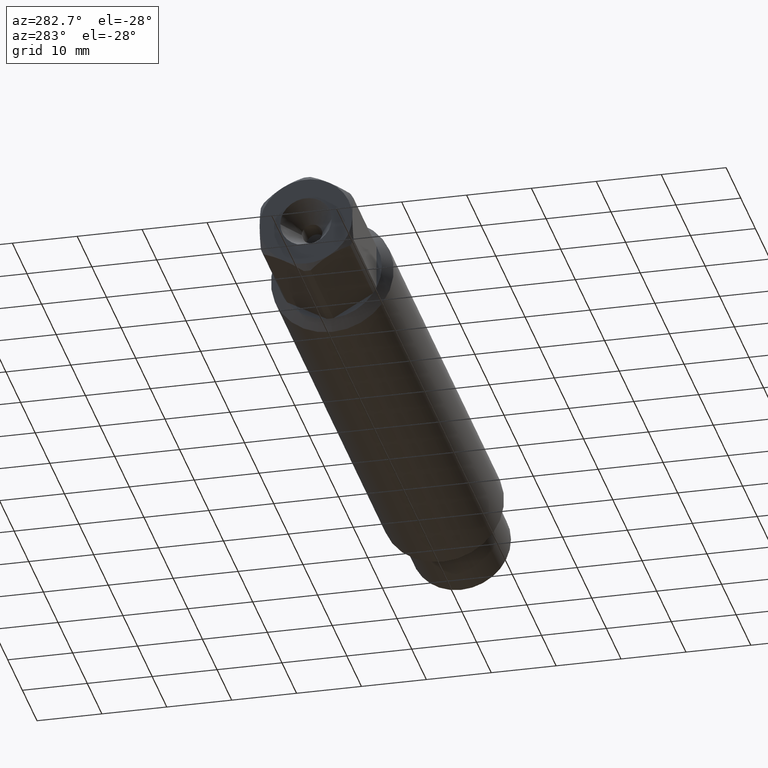
[diagram: clean part render]
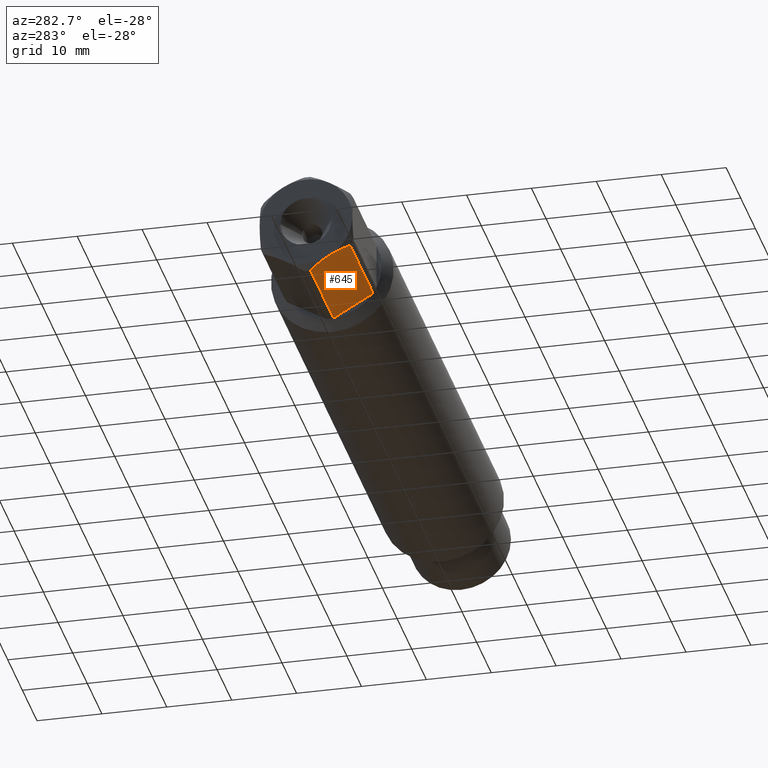
[diagram: same view with one face highlighted and labeled with its STEP entity id]
A machine part, auxiliary view. The second image highlights one B-rep face of the part: STEP entity #645.
In plain terms, the highlighted planar face has unit normal (0, -0.5, -0.866).
Its self-contained STEP definition (entity closure, byte-faithful):
#17 = LINE ( 'NONE', #211, #1021 ) ;
#42 = CARTESIAN_POINT ( 'NONE',  ( -4.196200931399096700, -0.1820648766040727800, -0.2196443209018271400 ) ) ;
#61 = ORIENTED_EDGE ( 'NONE', *, *, #1157, .F. ) ;
#134 = VECTOR ( 'NONE', #358, 39.37007874015748900 ) ;
#135 = CARTESIAN_POINT ( 'NONE',  ( -4.200000000000000200, -0.1510160157302986000, -0.2375703890853319300 ) ) ;
#150 = LINE ( 'NONE', #1057, #134 ) ;
#168 = DIRECTION ( 'NONE',  ( -1.000000000000000000, -0.0000000000000000000, -0.0000000000000000000 ) ) ;
#171 = CARTESIAN_POINT ( 'NONE',  ( -4.196902816074408600, -0.09951115254440355600, -0.2673067357102832400 ) ) ;
#211 = CARTESIAN_POINT ( 'NONE',  ( 0.0000000000000000000, -0.02068536674643359600, -0.3128168243598249400 ) ) ;
#247 = CARTESIAN_POINT ( 'NONE',  ( -4.200000000000000200, -0.1406249999999999700, -0.2435696448143735700 ) ) ;
#270 = CARTESIAN_POINT ( 'NONE',  ( -4.167750000000000700, -0.2605646332535661000, -0.1743224652689220900 ) ) ;
#274 = CARTESIAN_POINT ( 'NONE',  ( -4.177479962077509200, -0.03975960660705944000, -0.3018043068417051200 ) ) ;
#358 = DIRECTION ( 'NONE',  ( 0.0000000000000000000, 0.8660254037844388200, -0.4999999999999995600 ) ) ;
#400 = VERTEX_POINT ( 'NONE', #270 ) ;
#401 = CARTESIAN_POINT ( 'NONE',  ( -4.200000000000000200, -0.2812500000000000600, -0.1623797632095823300 ) ) ;
#410 = CARTESIAN_POINT ( 'NONE',  ( -4.167750000000000700, -0.2605646332535661000, -0.1743224652689220900 ) ) ;
#417 = EDGE_CURVE ( 'NONE', #1005, #400, #766, .T. ) ;
#440 = DIRECTION ( 'NONE',  ( 0.0000000000000000000, -0.4999999999999996100, -0.8660254037844389300 ) ) ;
#473 = B_SPLINE_CURVE_WITH_KNOTS ( 'NONE', 3,
 ( #1252, #757, #171, #858, #274, #952 ),
 .UNSPECIFIED., .F., .F.,
 ( 4, 2, 4 ),
 ( 0.003614895989461153100, 0.005420736817607503200, 0.007226577645753853700 ),
 .UNSPECIFIED. ) ;
#504 = VERTEX_POINT ( 'NONE', #247 ) ;
#607 = CARTESIAN_POINT ( 'NONE',  ( -4.193987063158387800, -0.1921746166841832900, -0.2138074597451382600 ) ) ;
#645 = ADVANCED_FACE ( 'NONE', ( #994 ), #701, .T. ) ;
#701 = PLANE ( 'NONE',  #820 ) ;
#708 = CARTESIAN_POINT ( 'NONE',  ( -4.199210888810553000, -0.1615314564352474900, -0.2314992965636820400 ) ) ;
#752 = EDGE_CURVE ( 'NONE', #844, #1220, #17, .T. ) ;
#757 = CARTESIAN_POINT ( 'NONE',  ( -4.199999999999999300, -0.1198586435573470400, -0.2555591062966267600 ) ) ;
#766 = LINE ( 'NONE', #1146, #1007 ) ;
#776 = EDGE_LOOP ( 'NONE', ( #787, #1052, #1020, #910, #61 ) ) ;
#787 = ORIENTED_EDGE ( 'NONE', *, *, #417, .T. ) ;
#810 = CARTESIAN_POINT ( 'NONE',  ( -4.200000000000000200, -0.1406249999999999700, -0.2435696448143735700 ) ) ;
#820 = AXIS2_PLACEMENT_3D ( 'NONE', #401, #440, #1128 ) ;
#844 = VERTEX_POINT ( 'NONE', #1205 ) ;
#858 = CARTESIAN_POINT ( 'NONE',  ( -4.185657859473332500, -0.05949921585190072500, -0.2904076381304978600 ) ) ;
#863 = CARTESIAN_POINT ( 'NONE',  ( -3.549999999999999400, -0.02068536674643357800, -0.3128168243598248300 ) ) ;
#907 = CARTESIAN_POINT ( 'NONE',  ( -3.549999999999999400, -0.2605646332535662100, -0.1743224652689220100 ) ) ;
#910 = ORIENTED_EDGE ( 'NONE', *, *, #752, .T. ) ;
#952 = CARTESIAN_POINT ( 'NONE',  ( -4.167750000000000700, -0.02068536674643368900, -0.3128168243598247700 ) ) ;
#961 = EDGE_CURVE ( 'NONE', #400, #504, #1010, .T. ) ;
#993 = DIRECTION ( 'NONE',  ( 1.000000000000000000, 0.0000000000000000000, 0.0000000000000000000 ) ) ;
#994 = FACE_OUTER_BOUND ( 'NONE', #776, .T. ) ;
#1004 = CARTESIAN_POINT ( 'NONE',  ( -4.177466745436705200, -0.2415163027823956400, -0.1853200239940653900 ) ) ;
#1005 = VERTEX_POINT ( 'NONE', #907 ) ;
#1007 = VECTOR ( 'NONE', #168, 39.37007874015748100 ) ;
#1010 = B_SPLINE_CURVE_WITH_KNOTS ( 'NONE', 3,
 ( #410, #1004, #1197, #607, #42, #708, #135, #810 ),
 .UNSPECIFIED., .F., .F.,
 ( 4, 2, 2, 4 ),
 ( 4.881363544445798400E-007, 0.001807692062907803200, 0.002711294026184478100, 0.003614895989461153100 ),
 .UNSPECIFIED. ) ;
#1020 = ORIENTED_EDGE ( 'NONE', *, *, #1176, .T. ) ;
#1021 = VECTOR ( 'NONE', #993, 39.37007874015748100 ) ;
#1052 = ORIENTED_EDGE ( 'NONE', *, *, #961, .T. ) ;
#1057 = CARTESIAN_POINT ( 'NONE',  ( -3.549999999999999400, -0.2812500000000000600, -0.1623797632095823300 ) ) ;
#1128 = DIRECTION ( 'NONE',  ( 0.0000000000000000000, 0.8660254037844388200, -0.4999999999999995600 ) ) ;
#1146 = CARTESIAN_POINT ( 'NONE',  ( 0.0000000000000000000, -0.2605646332535662100, -0.1743224652689220100 ) ) ;
#1157 = EDGE_CURVE ( 'NONE', #1005, #1220, #150, .T. ) ;
#1176 = EDGE_CURVE ( 'NONE', #504, #844, #473, .T. ) ;
#1197 = CARTESIAN_POINT ( 'NONE',  ( -4.185524259549387300, -0.2221005673274901400, -0.1965297040854695800 ) ) ;
#1205 = CARTESIAN_POINT ( 'NONE',  ( -4.167750000000000700, -0.02068536674643368900, -0.3128168243598247700 ) ) ;
#1220 = VERTEX_POINT ( 'NONE', #863 ) ;
#1252 = CARTESIAN_POINT ( 'NONE',  ( -4.200000000000000200, -0.1406249999999999700, -0.2435696448143735700 ) ) ;